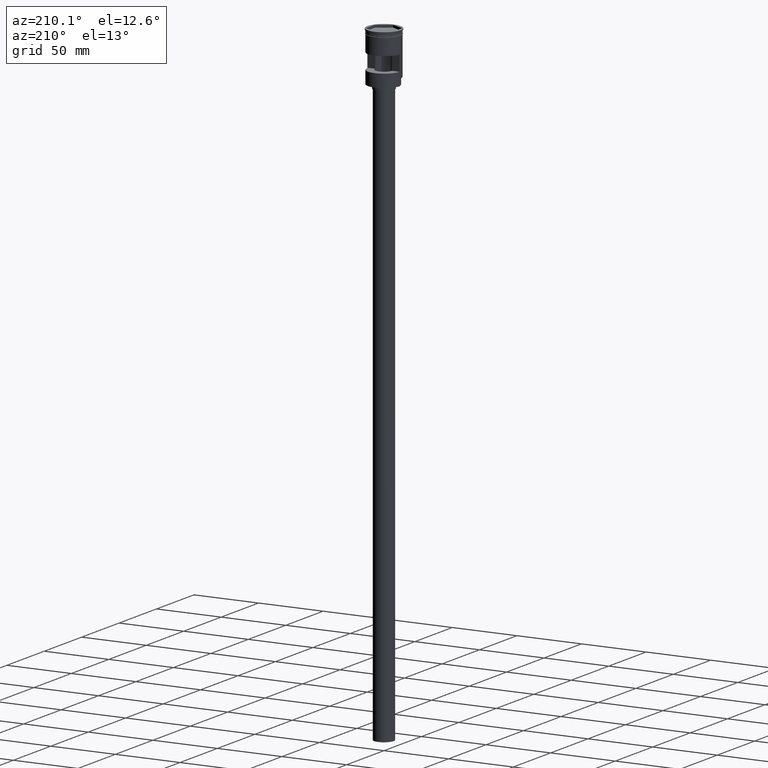
[diagram: clean part render]
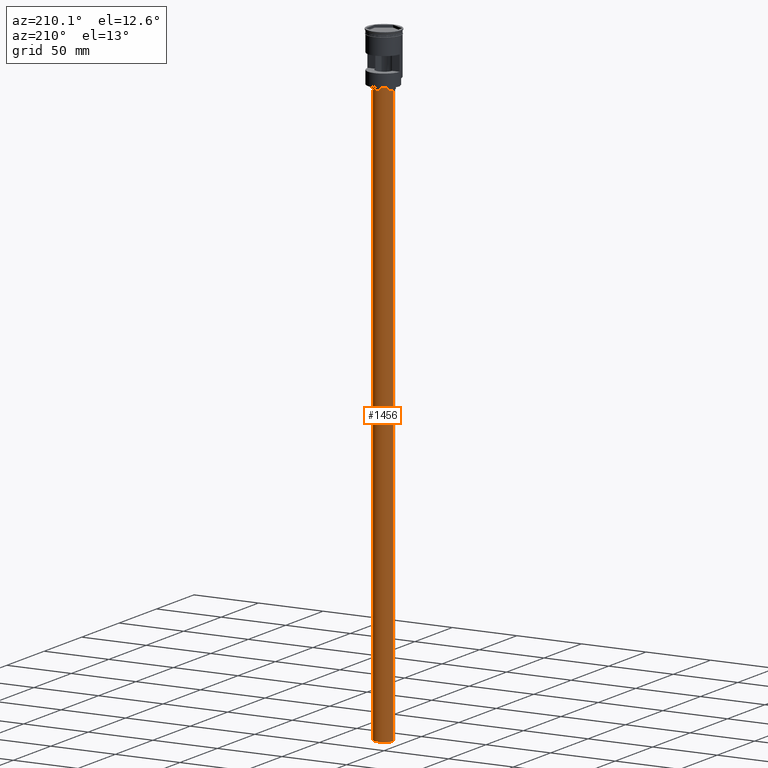
[diagram: same view with one face highlighted and labeled with its STEP entity id]
A machine part, auxiliary view. The second image highlights one B-rep face of the part: STEP entity #1456.
In plain terms, the highlighted cylindrical surface (edge-blend (fillet) strip) has radius 7.5 mm, axis along (-0, -0, 1).
Its self-contained STEP definition (entity closure, byte-faithful):
#7 = AXIS2_PLACEMENT_3D ( 'NONE', #1432, #550, #919 ) ;
#17 = CARTESIAN_POINT ( 'NONE',  ( 7.500000000000000000, 0.000000000000000000, -41.50000000000000000 ) ) ;
#27 = DIRECTION ( 'NONE',  ( -1.000000000000000000, 0.000000000000000000, 0.000000000000000000 ) ) ;
#51 = EDGE_LOOP ( 'NONE', ( #307, #1512, #178, #693 ) ) ;
#113 = AXIS2_PLACEMENT_3D ( 'NONE', #1128, #1501, #27 ) ;
#137 = VECTOR ( 'NONE', #257, 1000.000000000000000 ) ;
#178 = ORIENTED_EDGE ( 'NONE', *, *, #1367, .T. ) ;
#241 = LINE ( 'NONE', #1230, #137 ) ;
#257 = DIRECTION ( 'NONE',  ( -0.000000000000000000, -0.000000000000000000, 1.000000000000000000 ) ) ;
#307 = ORIENTED_EDGE ( 'NONE', *, *, #449, .F. ) ;
#356 = EDGE_CURVE ( 'NONE', #1411, #739, #694, .T. ) ;
#449 = EDGE_CURVE ( 'NONE', #1306, #1411, #1396, .T. ) ;
#539 = DIRECTION ( 'NONE',  ( -0.000000000000000000, -0.000000000000000000, 1.000000000000000000 ) ) ;
#550 = DIRECTION ( 'NONE',  ( 0.000000000000000000, 0.000000000000000000, -1.000000000000000000 ) ) ;
#569 = AXIS2_PLACEMENT_3D ( 'NONE', #635, #1287, #1125 ) ;
#592 = VERTEX_POINT ( 'NONE', #1595 ) ;
#635 = CARTESIAN_POINT ( 'NONE',  ( 0.000000000000000000, 0.000000000000000000, -488.5000000000000000 ) ) ;
#641 = CARTESIAN_POINT ( 'NONE',  ( 7.500000000000000000, 0.000000000000000000, -488.5000000000000000 ) ) ;
#693 = ORIENTED_EDGE ( 'NONE', *, *, #356, .F. ) ;
#694 = LINE ( 'NONE', #706, #1374 ) ;
#706 = CARTESIAN_POINT ( 'NONE',  ( 7.500000000000000000, 0.000000000000000000, -488.5000000000000000 ) ) ;
#739 = VERTEX_POINT ( 'NONE', #17 ) ;
#792 = FACE_OUTER_BOUND ( 'NONE', #51, .T. ) ;
#799 = CIRCLE ( 'NONE', #113, 7.500000000000000000 ) ;
#888 = CARTESIAN_POINT ( 'NONE',  ( -7.500000000000000000, 9.184850993605147944E-16, -488.5000000000000000 ) ) ;
#919 = DIRECTION ( 'NONE',  ( -1.000000000000000000, 0.000000000000000000, 0.000000000000000000 ) ) ;
#1125 = DIRECTION ( 'NONE',  ( 1.000000000000000000, 0.000000000000000000, 0.000000000000000000 ) ) ;
#1128 = CARTESIAN_POINT ( 'NONE',  ( 0.000000000000000000, 0.000000000000000000, -41.50000000000000000 ) ) ;
#1230 = CARTESIAN_POINT ( 'NONE',  ( -7.500000000000000000, 9.184850993605147944E-16, -488.5000000000000000 ) ) ;
#1239 = EDGE_CURVE ( 'NONE', #1306, #592, #241, .T. ) ;
#1240 = CYLINDRICAL_SURFACE ( 'NONE', #569, 7.500000000000000000 ) ;
#1287 = DIRECTION ( 'NONE',  ( -0.000000000000000000, -0.000000000000000000, 1.000000000000000000 ) ) ;
#1306 = VERTEX_POINT ( 'NONE', #888 ) ;
#1367 = EDGE_CURVE ( 'NONE', #592, #739, #799, .T. ) ;
#1374 = VECTOR ( 'NONE', #539, 1000.000000000000000 ) ;
#1396 = CIRCLE ( 'NONE', #7, 7.500000000000000000 ) ;
#1411 = VERTEX_POINT ( 'NONE', #641 ) ;
#1432 = CARTESIAN_POINT ( 'NONE',  ( 0.000000000000000000, 0.000000000000000000, -488.5000000000000000 ) ) ;
#1456 = ADVANCED_FACE ( 'NONE', ( #792 ), #1240, .T. ) ;
#1501 = DIRECTION ( 'NONE',  ( 0.000000000000000000, 0.000000000000000000, -1.000000000000000000 ) ) ;
#1512 = ORIENTED_EDGE ( 'NONE', *, *, #1239, .T. ) ;
#1595 = CARTESIAN_POINT ( 'NONE',  ( -7.500000000000000000, 9.184850993605147944E-16, -41.50000000000000000 ) ) ;